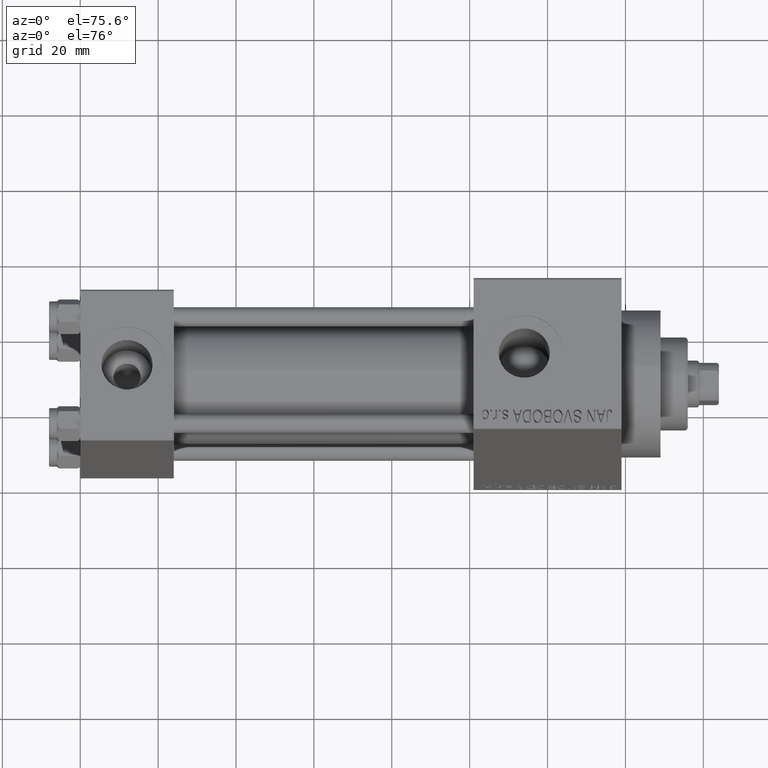
[diagram: clean part render]
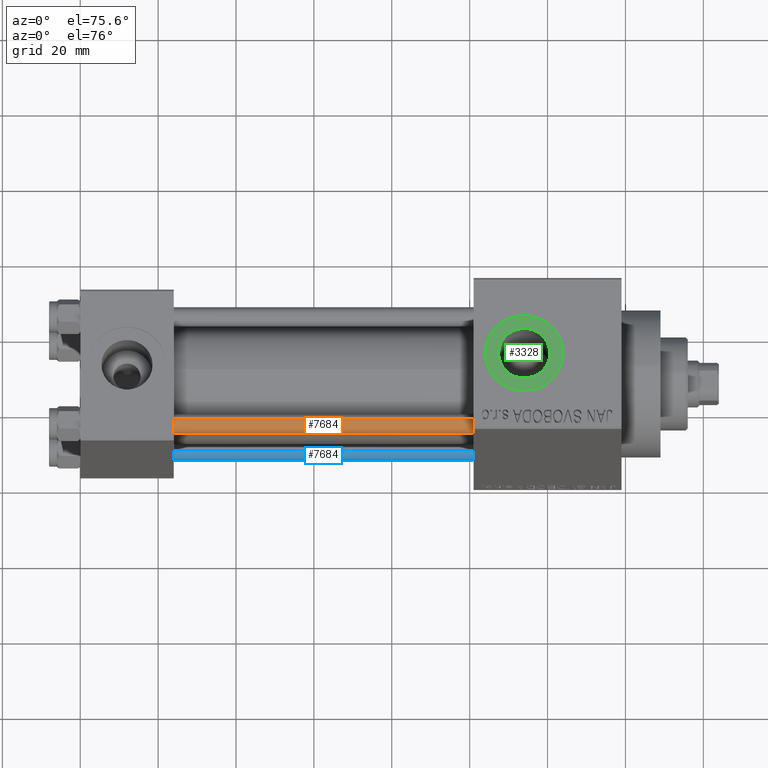
[diagram: same view with three faces highlighted in distinct colors, each labeled with its STEP entity id]
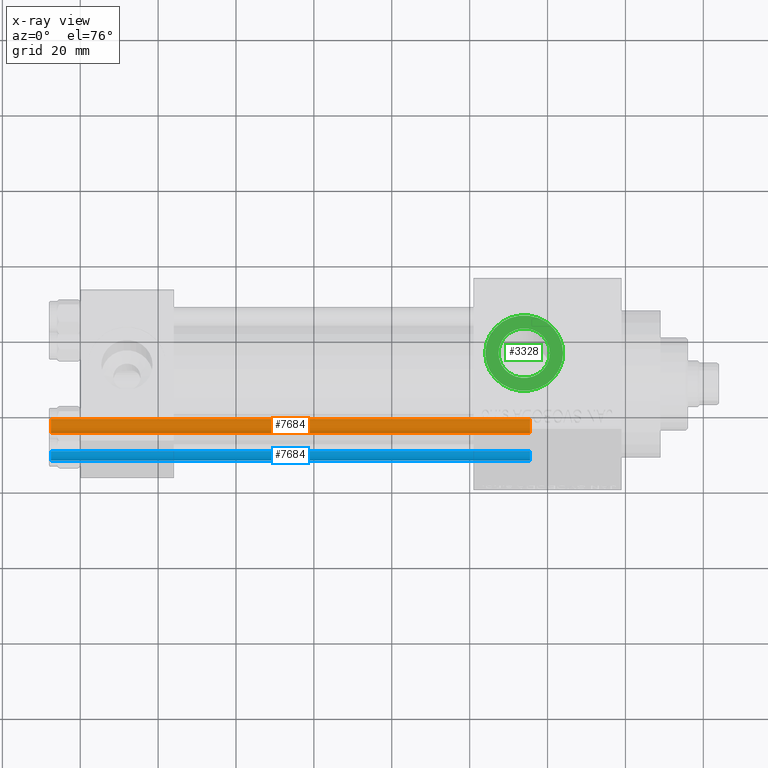
[diagram: x-ray of the same camera — body ghosted, the three highlighted faces saturated]
A machine part, auxiliary view with three faces highlighted in distinct colors.
The next image is the same camera in x-ray (body ghosted, the three faces saturated) — at least one of them is partly hidden behind the body in this view.
Their STEP definitions:

[orange] entity #7684 — the highlighted cylindrical surface (edge-blend (fillet) strip) has radius 2.5 mm, axis along (1, 0, 0).
#597 = EDGE_LOOP ( 'NONE', ( #34103, #6961, #8310, #22527 ) ) ;
#3958 = CIRCLE ( 'NONE', #4737, 2.500000000000000000 ) ;
#4737 = AXIS2_PLACEMENT_3D ( 'NONE', #17490, #28925, #6769 ) ;
#6747 = CARTESIAN_POINT ( 'NONE',  ( 0.000000000000000000, 0.000000000000000000, 123.5000000000000000 ) ) ;
#6769 = DIRECTION ( 'NONE',  ( 1.000000000000000000, 0.000000000000000000, 0.000000000000000000 ) ) ;
#6961 = ORIENTED_EDGE ( 'NONE', *, *, #10254, .T. ) ;
#7637 = CARTESIAN_POINT ( 'NONE',  ( -2.500000000000000000, 0.000000000000000000, 124.0000000000000000 ) ) ;
#7684 = ADVANCED_FACE ( 'NONE', ( #31568 ), #16819, .T. ) ;
#7699 = CIRCLE ( 'NONE', #27442, 2.500000000000000000 ) ;
#8310 = ORIENTED_EDGE ( 'NONE', *, *, #34347, .T. ) ;
#10254 = EDGE_CURVE ( 'NONE', #34848, #20727, #12142, .T. ) ;
#12142 = LINE ( 'NONE', #26675, #40678 ) ;
#15264 = DIRECTION ( 'NONE',  ( -0.000000000000000000, -0.000000000000000000, -1.000000000000000000 ) ) ;
#15743 = CARTESIAN_POINT ( 'NONE',  ( 2.500000000000000000, 3.061616997868383141E-16, 0.5000000000000004441 ) ) ;
#16819 = CYLINDRICAL_SURFACE ( 'NONE', #28407, 2.500000000000000000 ) ;
#17490 = CARTESIAN_POINT ( 'NONE',  ( 0.000000000000000000, 0.000000000000000000, 0.5000000000000004441 ) ) ;
#20727 = VERTEX_POINT ( 'NONE', #15743 ) ;
#21281 = DIRECTION ( 'NONE',  ( 1.000000000000000000, 0.000000000000000000, 0.000000000000000000 ) ) ;
#21315 = DIRECTION ( 'NONE',  ( -0.000000000000000000, -0.000000000000000000, -1.000000000000000000 ) ) ;
#22527 = ORIENTED_EDGE ( 'NONE', *, *, #31761, .F. ) ;
#22853 = VERTEX_POINT ( 'NONE', #43037 ) ;
#23040 = VECTOR ( 'NONE', #36460, 1000.000000000000000 ) ;
#24165 = CARTESIAN_POINT ( 'NONE',  ( -2.500000000000000000, 0.000000000000000000, 0.5000000000000004441 ) ) ;
#26675 = CARTESIAN_POINT ( 'NONE',  ( 2.500000000000000000, 3.061616997868383141E-16, 124.0000000000000000 ) ) ;
#26827 = VERTEX_POINT ( 'NONE', #24165 ) ;
#27442 = AXIS2_PLACEMENT_3D ( 'NONE', #6747, #42947, #21281 ) ;
#27551 = EDGE_CURVE ( 'NONE', #22853, #34848, #7699, .T. ) ;
#27994 = DIRECTION ( 'NONE',  ( -1.000000000000000000, 0.000000000000000000, 0.000000000000000000 ) ) ;
#28407 = AXIS2_PLACEMENT_3D ( 'NONE', #28463, #21315, #27994 ) ;
#28463 = CARTESIAN_POINT ( 'NONE',  ( 0.000000000000000000, 0.000000000000000000, 124.0000000000000000 ) ) ;
#28925 = DIRECTION ( 'NONE',  ( -0.000000000000000000, -0.000000000000000000, 1.000000000000000000 ) ) ;
#31568 = FACE_OUTER_BOUND ( 'NONE', #597, .T. ) ;
#31761 = EDGE_CURVE ( 'NONE', #22853, #26827, #40029, .T. ) ;
#32557 = CARTESIAN_POINT ( 'NONE',  ( 2.500000000000000000, 3.061616997868383141E-16, 123.5000000000000000 ) ) ;
#34103 = ORIENTED_EDGE ( 'NONE', *, *, #27551, .T. ) ;
#34347 = EDGE_CURVE ( 'NONE', #20727, #26827, #3958, .T. ) ;
#34848 = VERTEX_POINT ( 'NONE', #32557 ) ;
#36460 = DIRECTION ( 'NONE',  ( -0.000000000000000000, -0.000000000000000000, -1.000000000000000000 ) ) ;
#40029 = LINE ( 'NONE', #7637, #23040 ) ;
#40678 = VECTOR ( 'NONE', #15264, 1000.000000000000000 ) ;
#42947 = DIRECTION ( 'NONE',  ( 0.000000000000000000, 0.000000000000000000, -1.000000000000000000 ) ) ;
#43037 = CARTESIAN_POINT ( 'NONE',  ( -2.500000000000000000, 0.000000000000000000, 123.5000000000000000 ) ) ;

[blue] entity #7684 — the highlighted cylindrical surface (edge-blend (fillet) strip) has radius 2.5 mm, axis along (-1, 0, 0).
#597 = EDGE_LOOP ( 'NONE', ( #34103, #6961, #8310, #22527 ) ) ;
#3958 = CIRCLE ( 'NONE', #4737, 2.500000000000000000 ) ;
#4737 = AXIS2_PLACEMENT_3D ( 'NONE', #17490, #28925, #6769 ) ;
#6747 = CARTESIAN_POINT ( 'NONE',  ( 0.000000000000000000, 0.000000000000000000, 123.5000000000000000 ) ) ;
#6769 = DIRECTION ( 'NONE',  ( 1.000000000000000000, 0.000000000000000000, 0.000000000000000000 ) ) ;
#6961 = ORIENTED_EDGE ( 'NONE', *, *, #10254, .T. ) ;
#7637 = CARTESIAN_POINT ( 'NONE',  ( -2.500000000000000000, 0.000000000000000000, 124.0000000000000000 ) ) ;
#7684 = ADVANCED_FACE ( 'NONE', ( #31568 ), #16819, .T. ) ;
#7699 = CIRCLE ( 'NONE', #27442, 2.500000000000000000 ) ;
#8310 = ORIENTED_EDGE ( 'NONE', *, *, #34347, .T. ) ;
#10254 = EDGE_CURVE ( 'NONE', #34848, #20727, #12142, .T. ) ;
#12142 = LINE ( 'NONE', #26675, #40678 ) ;
#15264 = DIRECTION ( 'NONE',  ( -0.000000000000000000, -0.000000000000000000, -1.000000000000000000 ) ) ;
#15743 = CARTESIAN_POINT ( 'NONE',  ( 2.500000000000000000, 3.061616997868383141E-16, 0.5000000000000004441 ) ) ;
#16819 = CYLINDRICAL_SURFACE ( 'NONE', #28407, 2.500000000000000000 ) ;
#17490 = CARTESIAN_POINT ( 'NONE',  ( 0.000000000000000000, 0.000000000000000000, 0.5000000000000004441 ) ) ;
#20727 = VERTEX_POINT ( 'NONE', #15743 ) ;
#21281 = DIRECTION ( 'NONE',  ( 1.000000000000000000, 0.000000000000000000, 0.000000000000000000 ) ) ;
#21315 = DIRECTION ( 'NONE',  ( -0.000000000000000000, -0.000000000000000000, -1.000000000000000000 ) ) ;
#22527 = ORIENTED_EDGE ( 'NONE', *, *, #31761, .F. ) ;
#22853 = VERTEX_POINT ( 'NONE', #43037 ) ;
#23040 = VECTOR ( 'NONE', #36460, 1000.000000000000000 ) ;
#24165 = CARTESIAN_POINT ( 'NONE',  ( -2.500000000000000000, 0.000000000000000000, 0.5000000000000004441 ) ) ;
#26675 = CARTESIAN_POINT ( 'NONE',  ( 2.500000000000000000, 3.061616997868383141E-16, 124.0000000000000000 ) ) ;
#26827 = VERTEX_POINT ( 'NONE', #24165 ) ;
#27442 = AXIS2_PLACEMENT_3D ( 'NONE', #6747, #42947, #21281 ) ;
#27551 = EDGE_CURVE ( 'NONE', #22853, #34848, #7699, .T. ) ;
#27994 = DIRECTION ( 'NONE',  ( -1.000000000000000000, 0.000000000000000000, 0.000000000000000000 ) ) ;
#28407 = AXIS2_PLACEMENT_3D ( 'NONE', #28463, #21315, #27994 ) ;
#28463 = CARTESIAN_POINT ( 'NONE',  ( 0.000000000000000000, 0.000000000000000000, 124.0000000000000000 ) ) ;
#28925 = DIRECTION ( 'NONE',  ( -0.000000000000000000, -0.000000000000000000, 1.000000000000000000 ) ) ;
#31568 = FACE_OUTER_BOUND ( 'NONE', #597, .T. ) ;
#31761 = EDGE_CURVE ( 'NONE', #22853, #26827, #40029, .T. ) ;
#32557 = CARTESIAN_POINT ( 'NONE',  ( 2.500000000000000000, 3.061616997868383141E-16, 123.5000000000000000 ) ) ;
#34103 = ORIENTED_EDGE ( 'NONE', *, *, #27551, .T. ) ;
#34347 = EDGE_CURVE ( 'NONE', #20727, #26827, #3958, .T. ) ;
#34848 = VERTEX_POINT ( 'NONE', #32557 ) ;
#36460 = DIRECTION ( 'NONE',  ( -0.000000000000000000, -0.000000000000000000, -1.000000000000000000 ) ) ;
#40029 = LINE ( 'NONE', #7637, #23040 ) ;
#40678 = VECTOR ( 'NONE', #15264, 1000.000000000000000 ) ;
#42947 = DIRECTION ( 'NONE',  ( 0.000000000000000000, 0.000000000000000000, -1.000000000000000000 ) ) ;
#43037 = CARTESIAN_POINT ( 'NONE',  ( -2.500000000000000000, 0.000000000000000000, 123.5000000000000000 ) ) ;

[green] entity #3328 — the highlighted planar face has unit normal (0, 0, 1).
#1036 = CARTESIAN_POINT ( 'NONE',  ( 124.0000000000000142, -5.551115123125782702E-15, 31.80000000000000071 ) ) ;
#1293 = FACE_BOUND ( 'NONE', #1396, .T. ) ;
#1396 = EDGE_LOOP ( 'NONE', ( #27646, #29809 ) ) ;
#3328 = ADVANCED_FACE ( 'NONE', ( #1293, #37033 ), #8672, .T. ) ;
#3538 = VERTEX_POINT ( 'NONE', #35886 ) ;
#3605 = DIRECTION ( 'NONE',  ( 1.000000000000000000, 0.000000000000000000, 0.000000000000000000 ) ) ;
#5116 = DIRECTION ( 'NONE',  ( 1.000000000000000000, 0.000000000000000000, -0.000000000000000000 ) ) ;
#6196 = CIRCLE ( 'NONE', #30541, 10.00000000000000888 ) ;
#7100 = VERTEX_POINT ( 'NONE', #1036 ) ;
#8298 = CARTESIAN_POINT ( 'NONE',  ( 114.0000000000000000, -5.551115123125782702E-15, 31.80000000000000071 ) ) ;
#8525 = DIRECTION ( 'NONE',  ( -0.000000000000000000, -0.000000000000000000, -1.000000000000000000 ) ) ;
#8672 = PLANE ( 'NONE',  #26804 ) ;
#9312 = DIRECTION ( 'NONE',  ( 1.000000000000000000, 0.000000000000000000, 0.000000000000000000 ) ) ;
#9955 = CARTESIAN_POINT ( 'NONE',  ( 114.0000000000000000, -5.551115123125782702E-15, 31.80000000000000071 ) ) ;
#10735 = DIRECTION ( 'NONE',  ( 0.000000000000000000, 0.000000000000000000, 1.000000000000000000 ) ) ;
#13916 = CIRCLE ( 'NONE', #40545, 10.00000000000000888 ) ;
#16436 = CIRCLE ( 'NONE', #43031, 6.580000000000002736 ) ;
#21675 = AXIS2_PLACEMENT_3D ( 'NONE', #8298, #8525, #44963 ) ;
#22170 = CARTESIAN_POINT ( 'NONE',  ( 114.0000000000000000, -5.551115123125782702E-15, 31.80000000000000071 ) ) ;
#23174 = VERTEX_POINT ( 'NONE', #46638 ) ;
#23218 = CARTESIAN_POINT ( 'NONE',  ( 114.0000000000000000, -5.551115123125782702E-15, 31.80000000000000071 ) ) ;
#23623 = CARTESIAN_POINT ( 'NONE',  ( 114.0000000000000000, -5.551115123125782702E-15, 31.80000000000000071 ) ) ;
#24718 = CIRCLE ( 'NONE', #21675, 6.580000000000002736 ) ;
#25063 = VERTEX_POINT ( 'NONE', #26921 ) ;
#26804 = AXIS2_PLACEMENT_3D ( 'NONE', #23218, #33454, #5116 ) ;
#26921 = CARTESIAN_POINT ( 'NONE',  ( 104.0000000000000000, -4.326468323978428854E-15, 31.80000000000000071 ) ) ;
#27646 = ORIENTED_EDGE ( 'NONE', *, *, #40805, .T. ) ;
#29253 = EDGE_CURVE ( 'NONE', #7100, #25063, #6196, .T. ) ;
#29809 = ORIENTED_EDGE ( 'NONE', *, *, #43524, .T. ) ;
#30541 = AXIS2_PLACEMENT_3D ( 'NONE', #23623, #30763, #9312 ) ;
#30704 = EDGE_LOOP ( 'NONE', ( #36010, #37789 ) ) ;
#30763 = DIRECTION ( 'NONE',  ( 0.000000000000000000, 0.000000000000000000, 1.000000000000000000 ) ) ;
#31763 = EDGE_CURVE ( 'NONE', #25063, #7100, #13916, .T. ) ;
#33454 = DIRECTION ( 'NONE',  ( 0.000000000000000000, 0.000000000000000000, 1.000000000000000000 ) ) ;
#34745 = DIRECTION ( 'NONE',  ( -0.000000000000000000, -0.000000000000000000, -1.000000000000000000 ) ) ;
#35886 = CARTESIAN_POINT ( 'NONE',  ( 120.5800000000000125, -4.745297529286824449E-15, 31.80000000000000071 ) ) ;
#36010 = ORIENTED_EDGE ( 'NONE', *, *, #29253, .T. ) ;
#37033 = FACE_OUTER_BOUND ( 'NONE', #30704, .T. ) ;
#37789 = ORIENTED_EDGE ( 'NONE', *, *, #31763, .T. ) ;
#40545 = AXIS2_PLACEMENT_3D ( 'NONE', #22170, #10735, #3605 ) ;
#40805 = EDGE_CURVE ( 'NONE', #23174, #3538, #24718, .T. ) ;
#42128 = DIRECTION ( 'NONE',  ( 1.000000000000000000, 0.000000000000000000, 0.000000000000000000 ) ) ;
#43031 = AXIS2_PLACEMENT_3D ( 'NONE', #9955, #34745, #42128 ) ;
#43524 = EDGE_CURVE ( 'NONE', #3538, #23174, #16436, .T. ) ;
#44963 = DIRECTION ( 'NONE',  ( 1.000000000000000000, 0.000000000000000000, 0.000000000000000000 ) ) ;
#46638 = CARTESIAN_POINT ( 'NONE',  ( 107.4200000000000017, -5.551115123125782702E-15, 31.80000000000000071 ) ) ;